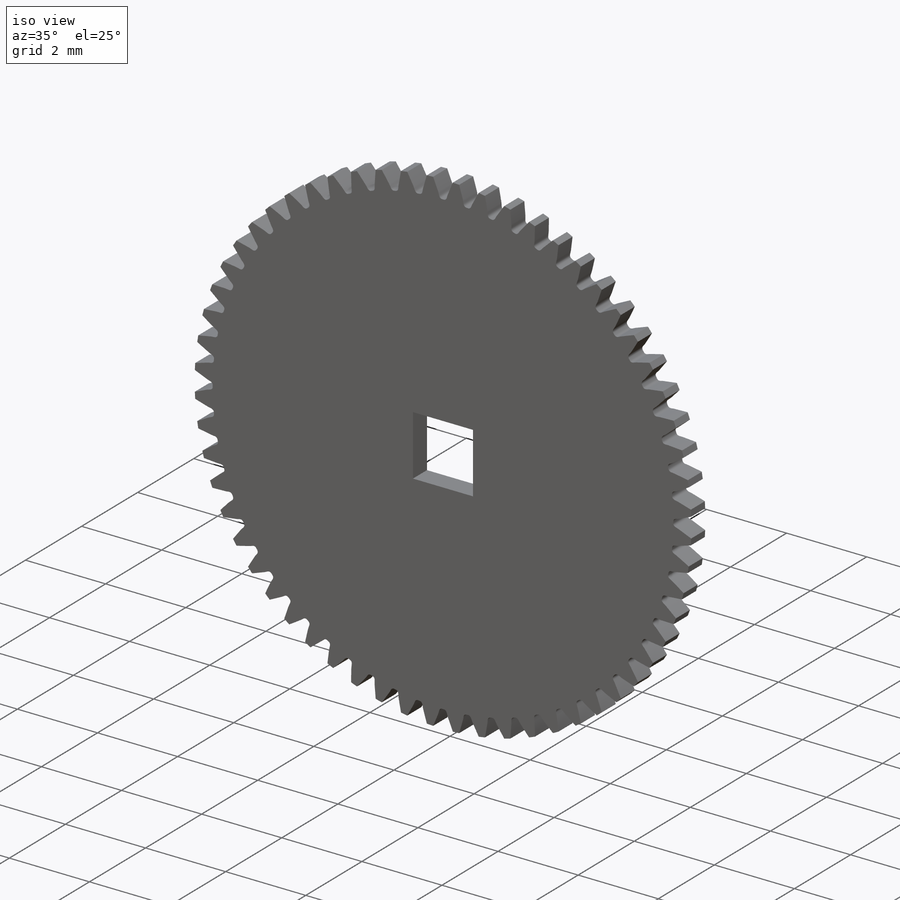
[diagram: iso view]
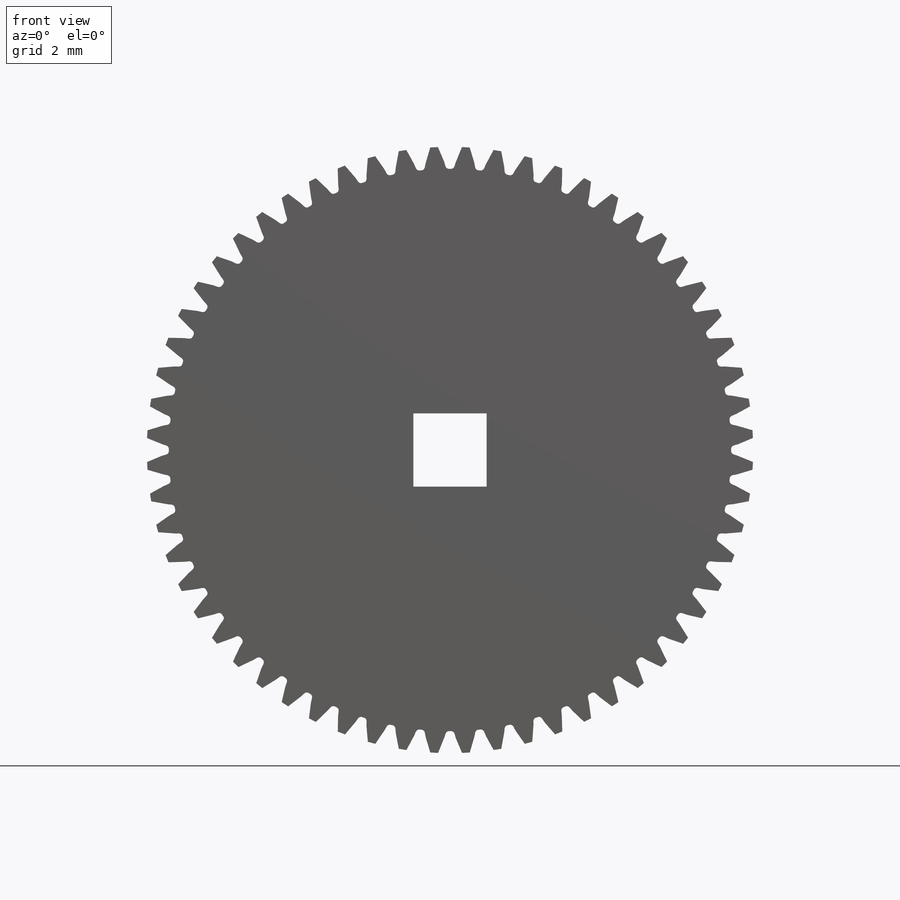
[diagram: front view]
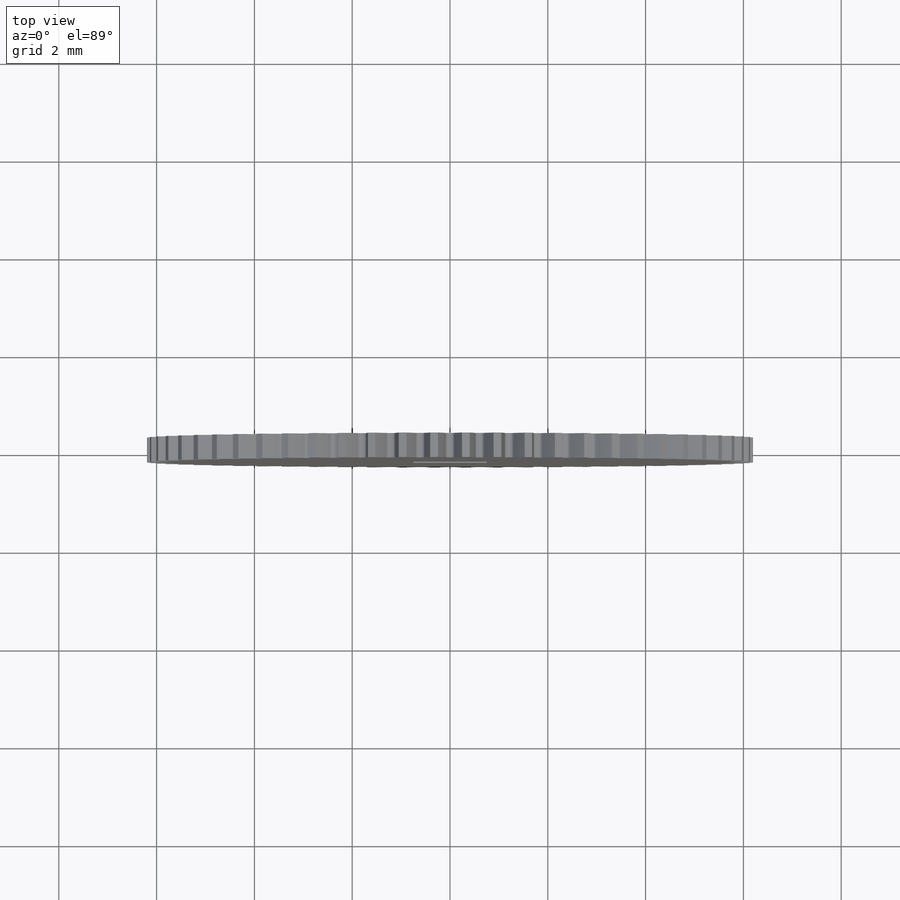
[diagram: top view]
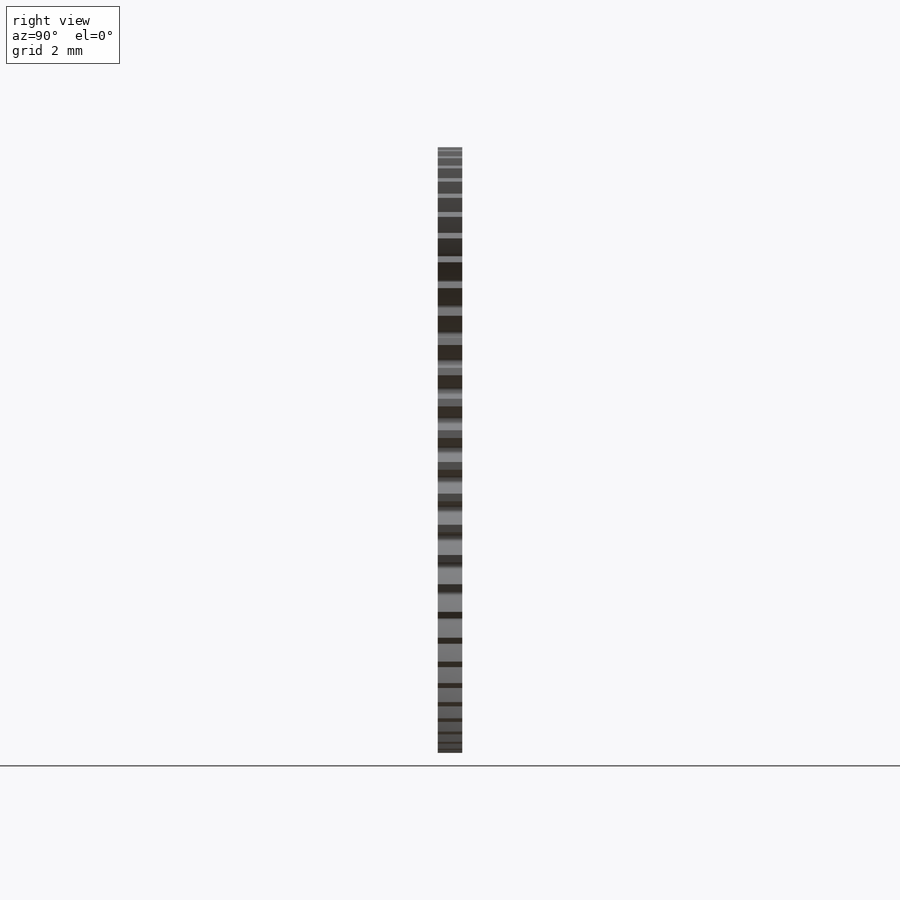
[diagram: right view]
SOLIDWORKS PART (.sldprt)
format: sldprt  version: not decoded by parser v0  size: 904,192 bytes
history: native  units: mm
features: sketch x4, plane x3, cut_extrude x2, material x1, revolve x1, pattern_circular x1 (+8 scaffold rows collapsed)
feature tree (20):
  scaffold x8  (default folders/planes/origin — collapsed)
  material  "Material <sin especificar>"
  plane  "Alzado"
  plane  "Planta"
  plane  "Vista lateral"
  sketch  "SketchRevolveEngranaje Fino(12.4)"
  revolve  "Engranaje Fino(12.4)"  Angle=360deg
  sketch  "SketchToothEngranaje Fino(12.4)"
  cut_extrude  "ToothExtrudeCutEngranaje Fino(12.4)"  Depth=0.25mm
  pattern_circular  "PatternEngranaje Fino(12.4)"  Count=60 Angle=6deg
  sketch  "AuxiliarySketchEngranaje Fino(12.4)"  dims[PitchDiameter=12.0mm BaseDiameter=~11.276311mm FormDiameter=11.6366mm MajorDiameter=12.4mm MinorDiameter=11.5mm]
  sketch  "Croquis1"  dims[D1=1.5mm D2=1.5mm]
  cut_extrude  "Cortar-Extruir1"  Depth=10mm
decode coverage: 6 of 8 modeling features carry decoded parameters
note: ~ marks probable driven/reference dimensions
note: suppression state not decoded; provenance and decode notes live in map.json
